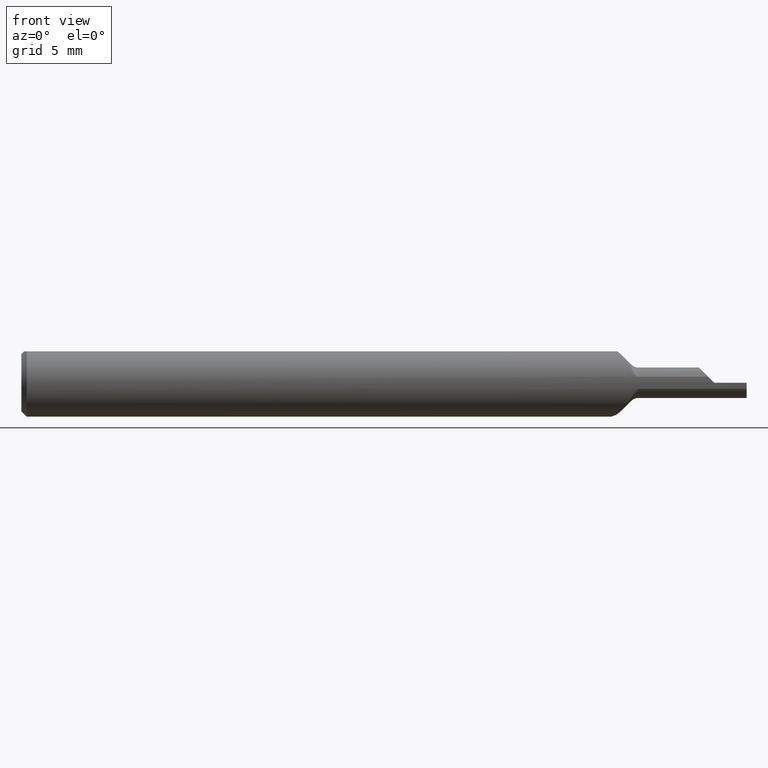
[diagram: clean part render]
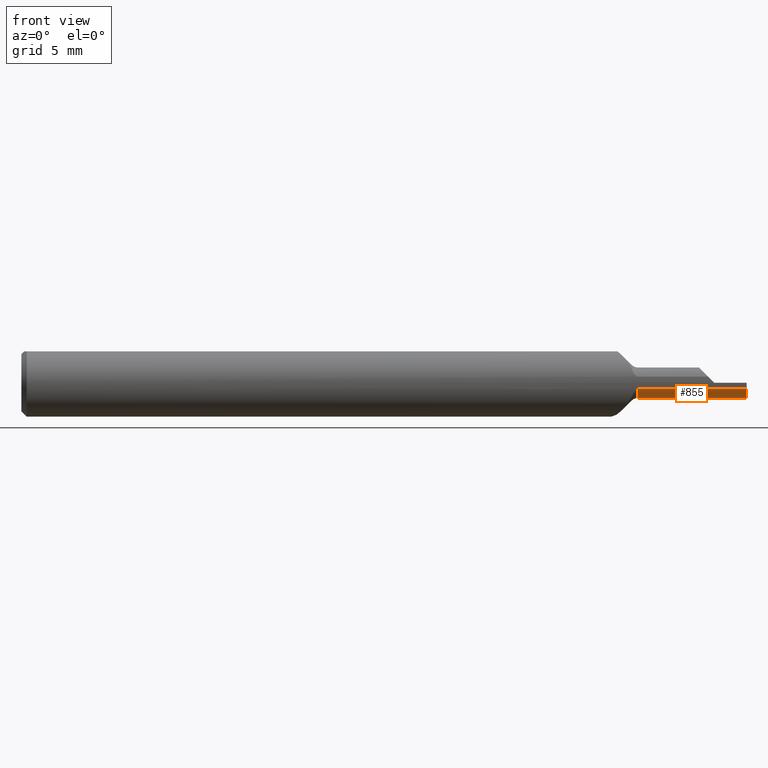
[diagram: same view with one face highlighted and labeled with its STEP entity id]
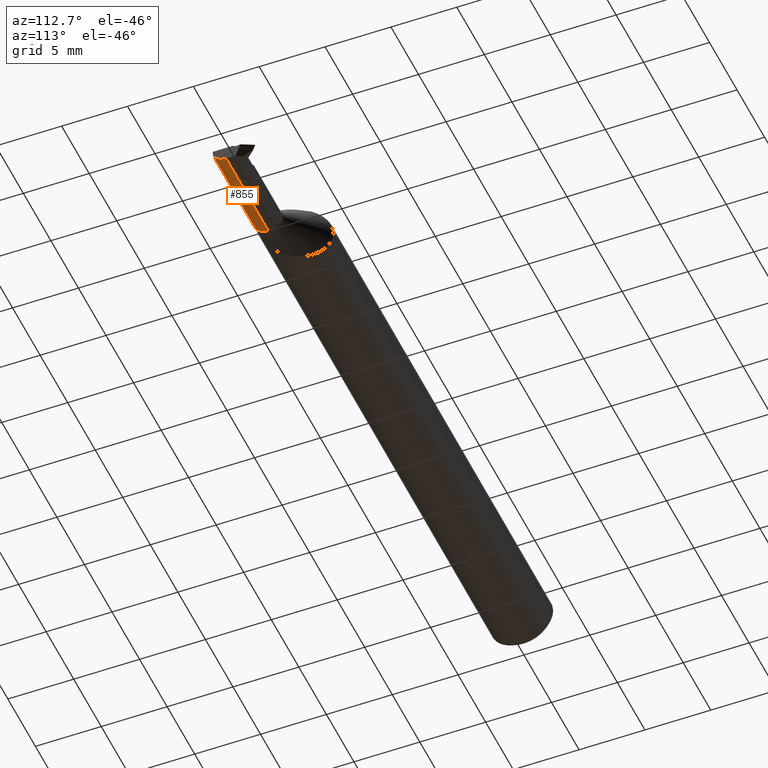
[diagram: same view with one face highlighted and labeled with its STEP entity id]
A machine part, front view. The second image highlights one B-rep face of the part: STEP entity #855.
A second angle (auxiliary view) of the same face is appended — the face is thin or edge-on in the first view.
In plain terms, the highlighted cylindrical surface (edge-blend (fillet) strip) has radius 1.0668 mm, axis along (-1, -0, -0).
Its self-contained STEP definition (entity closure, byte-faithful):
#7 = CARTESIAN_POINT ( 'NONE',  ( 2.000000000000000000, -0.05360000000000000875, 0.000000000000000000 ) ) ;
#44 = DIRECTION ( 'NONE',  ( 0.000000000000000000, 0.000000000000000000, 1.000000000000000000 ) ) ;
#46 = ORIENTED_EDGE ( 'NONE', *, *, #293, .F. ) ;
#100 = AXIS2_PLACEMENT_3D ( 'NONE', #7, #253, #564 ) ;
#104 = ORIENTED_EDGE ( 'NONE', *, *, #900, .T. ) ;
#117 = CARTESIAN_POINT ( 'NONE',  ( 1.822500000000000009, -0.09207014925373130376, -0.01685371224376508437 ) ) ;
#118 = AXIS2_PLACEMENT_3D ( 'NONE', #1020, #380, #300 ) ;
#135 = ORIENTED_EDGE ( 'NONE', *, *, #159, .F. ) ;
#140 = FACE_OUTER_BOUND ( 'NONE', #148, .T. ) ;
#148 = EDGE_LOOP ( 'NONE', ( #1014, #46, #135, #411, #104 ) ) ;
#159 = EDGE_CURVE ( 'NONE', #715, #818, #216, .T. ) ;
#179 = CARTESIAN_POINT ( 'NONE',  ( 2.000000000000000000, -0.05360000000000001569, -0.04200000000000000955 ) ) ;
#206 = DIRECTION ( 'NONE',  ( -1.000000000000000000, -0.000000000000000000, -0.000000000000000000 ) ) ;
#216 = CIRCLE ( 'NONE', #100, 0.04200000000000000955 ) ;
#253 = DIRECTION ( 'NONE',  ( 1.000000000000000000, -0.000000000000000000, -0.000000000000000000 ) ) ;
#256 = CARTESIAN_POINT ( 'NONE',  ( 1.955000000000000071, -0.05360000000000001569, -0.04200000000000000955 ) ) ;
#293 = EDGE_CURVE ( 'NONE', #818, #768, #995, .T. ) ;
#295 = CARTESIAN_POINT ( 'NONE',  ( 1.689999999999999947, -0.05360000000000000875, 0.000000000000000000 ) ) ;
#300 = DIRECTION ( 'NONE',  ( 0.000000000000000000, 8.130499981143638559E-16, 1.000000000000000000 ) ) ;
#308 = VERTEX_POINT ( 'NONE', #606 ) ;
#380 = DIRECTION ( 'NONE',  ( 1.000000000000000000, 0.000000000000000000, 0.000000000000000000 ) ) ;
#385 = EDGE_CURVE ( 'NONE', #715, #308, #522, .T. ) ;
#411 = ORIENTED_EDGE ( 'NONE', *, *, #385, .T. ) ;
#432 = DIRECTION ( 'NONE',  ( -1.000000000000000000, -0.000000000000000000, -0.000000000000000000 ) ) ;
#442 = VECTOR ( 'NONE', #432, 39.37007874015748143 ) ;
#443 = DIRECTION ( 'NONE',  ( -1.000000000000000000, -0.000000000000000000, -0.000000000000000000 ) ) ;
#474 = CIRCLE ( 'NONE', #118, 0.04200000000000000955 ) ;
#495 = CARTESIAN_POINT ( 'NONE',  ( 1.700355339059327342, -0.05360000000000000181, -0.04200000000000000955 ) ) ;
#522 = LINE ( 'NONE', #117, #1041 ) ;
#564 = DIRECTION ( 'NONE',  ( 0.000000000000000000, 0.000000000000000000, 1.000000000000000000 ) ) ;
#590 = CARTESIAN_POINT ( 'NONE',  ( 1.689999999999999947, -0.05360000000000000181, -0.04200000000000000955 ) ) ;
#591 = CARTESIAN_POINT ( 'NONE',  ( 2.000000000000000000, -0.05360000000000001569, -0.04200000000000000955 ) ) ;
#606 = CARTESIAN_POINT ( 'NONE',  ( 1.700355339059327342, -0.09207014925373130376, -0.01685371224376508437 ) ) ;
#626 = AXIS2_PLACEMENT_3D ( 'NONE', #295, #206, #44 ) ;
#715 = VERTEX_POINT ( 'NONE', #743 ) ;
#743 = CARTESIAN_POINT ( 'NONE',  ( 2.000000000000000000, -0.09207014925373137315, -0.01685371224376502886 ) ) ;
#768 = VERTEX_POINT ( 'NONE', #256 ) ;
#769 = CYLINDRICAL_SURFACE ( 'NONE', #626, 0.04200000000000000955 ) ;
#813 = EDGE_CURVE ( 'NONE', #768, #962, #984, .T. ) ;
#818 = VERTEX_POINT ( 'NONE', #179 ) ;
#855 = ADVANCED_FACE ( 'NONE', ( #140 ), #769, .T. ) ;
#900 = EDGE_CURVE ( 'NONE', #308, #962, #474, .T. ) ;
#908 = DIRECTION ( 'NONE',  ( -1.000000000000000000, -0.000000000000000000, -0.000000000000000000 ) ) ;
#962 = VERTEX_POINT ( 'NONE', #495 ) ;
#984 = LINE ( 'NONE', #590, #990 ) ;
#990 = VECTOR ( 'NONE', #908, 39.37007874015748143 ) ;
#995 = LINE ( 'NONE', #591, #442 ) ;
#1014 = ORIENTED_EDGE ( 'NONE', *, *, #813, .F. ) ;
#1020 = CARTESIAN_POINT ( 'NONE',  ( 1.700355339059327342, -0.05360000000000000875, 0.000000000000000000 ) ) ;
#1041 = VECTOR ( 'NONE', #443, 39.37007874015748143 ) ;